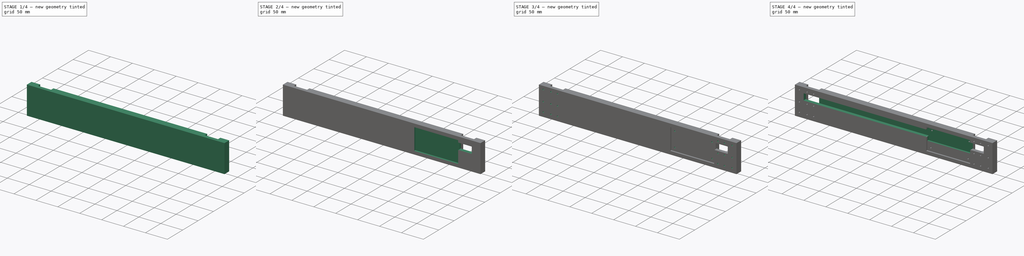
[diagram: build sequence overview — one tinted view per stage of 4, left to right]
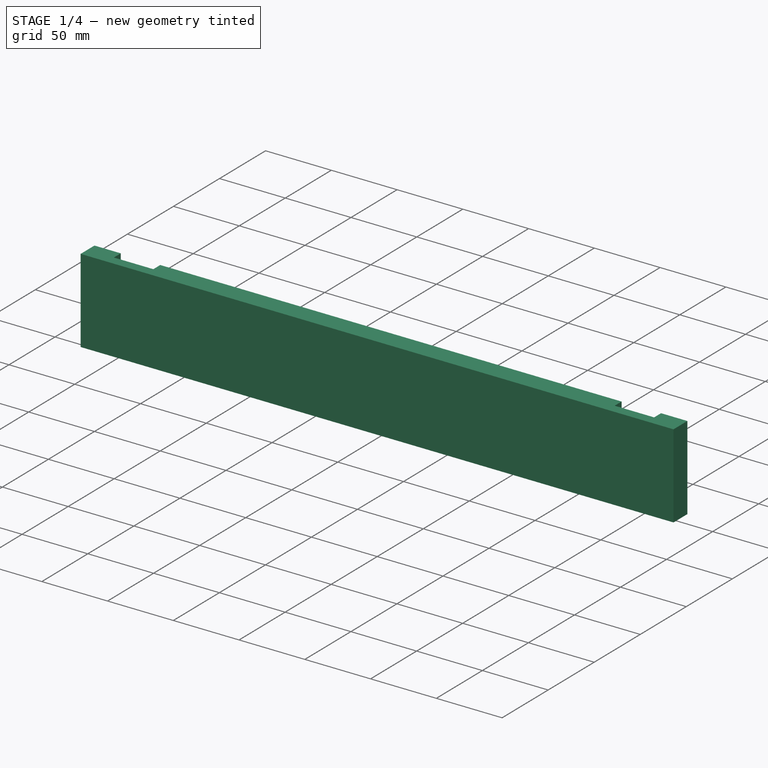
[diagram: stage 1 of 4 — iso view after this stage's code; geometry added in this stage tinted green]
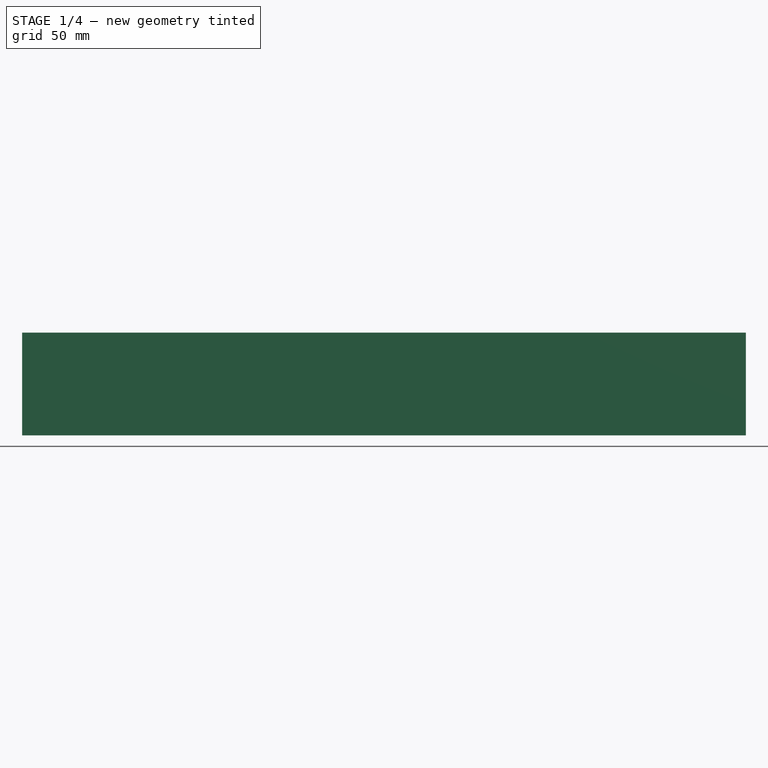
[diagram: stage 1 of 4 — front view after this stage's code; geometry added in this stage tinted green]
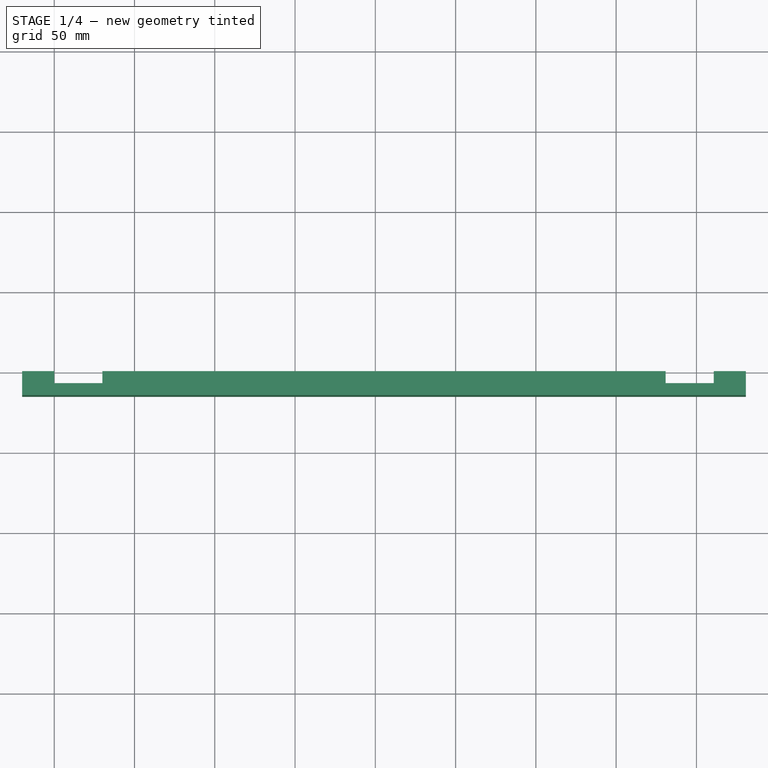
[diagram: stage 1 of 4 — top view after this stage's code; geometry added in this stage tinted green]
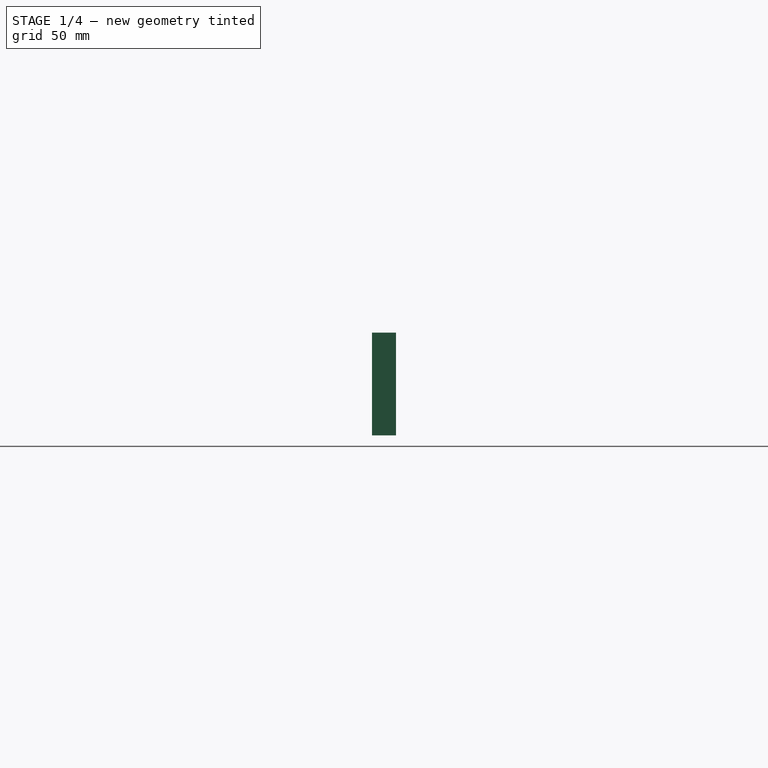
[diagram: stage 1 of 4 — right view after this stage's code; geometry added in this stage tinted green]
FCSTD DOCUMENT  (FreeCAD 0.19R24291 (Git))
Label: InnerFrontWall
License: All rights reserved
LicenseURL: http://en.wikipedia.org/wiki/All_rights_reserved
objects: PartDesign::CoordinateSystem×10, Sketcher::SketchObject×9, PartDesign::Pocket×8, PartDesign::Plane×2, App::FeaturePython×1, PartDesign::Pad×1, PartDesign::Body×1, App::Part×1
note: 40 computed .brp shape members not serialized (recipe doc carries the construction recipe); baked Part::Feature solids carry a one-line shape summary decoded from their .brp

FEATURE [PartDesign::CoordinateSystem] LCS_0
  AttacherType = Attacher::AttachEngine3D
  MapMode = 2
  Support = -> [X_Axis]
FEATURE [PartDesign::CoordinateSystem] LCS_0001
  AttacherType = Attacher::AttachEngine3D
  MapMode = 2
  Support = -> [X_Axis001]
FEATURE [Sketcher::SketchObject] Sketch
  FullyConstrained = true
  MapMode = 5
  Placement = pos=(0,0,0) rot=(1,0,0;1.5708rad)
  Support = -> [XZ_Plane001]
  expr: Constraints[4] = <<Attributes>>.DrawerHeight_DH
  expr: Constraints[7] = <<Attributes>>.SideLengt * 2 + <<Attributes>>.DrawerWidth_DW
  expr: Constraints[11] = <<Attributes>>.SideLengt
  sketch-geometry (4):
    g0: LineSegment StartX=430.8 StartY=0 StartZ=0 EndX=430.8 EndY=64 EndZ=0
    g1: LineSegment StartX=430.8 StartY=64 StartZ=0 EndX=-20 EndY=64 EndZ=0
    g2: LineSegment StartX=-20 StartY=64 StartZ=0 EndX=-20 EndY=0 EndZ=0
    g3: LineSegment StartX=-20 StartY=0 StartZ=0 EndX=430.8 EndY=0 EndZ=0
  constraints (12):
    c: Vertical(g0)
    c: Horizontal(g1)
    c: Horizontal(g3)
    c: Vertical(g2)
    c: Distance(g2) = 64
    c: Coincident(g1,g0)
    c: Coincident(g1,g2)
    c: Distance(g1) = 450.8
    c: Coincident(g3,g0)
    c: Coincident(g2,g3)
    c: PointOnObject(g2,g-1)
    c: DistanceX(g2,g-1) = 20
FEATURE [App::FeaturePython] PropertyBag  label="Attributes"  # WARN: FeaturePython — macro-defined, semantics opaque (R4)
  BackWidth = 395.8
  Back_Space = 100
  BottomDepth = 365.8
  BottomWidth = 365.8
  Bottom_Height_BH = 4
  Bottom_Space_Height = 20
  Box_Tolerance = 0.2
  Boxes_Depth = 5
  Boxes_Height = 40
  Boxes_Width = 5
  CableChannelHight = 15
  CableChannelRadius = 2
  CustomPropertyGroups = shape | attributes
  DrawerDepth_DD = 465.8
  DrawerHeight_DH = 64
  DrawerWidth_DW = 410.8
  InnerWallDepth = 358.3
  LogicBoardScrewHeadDiameter = 6
  LogicBoardScrewHeadHeight = 3
  LogicBoardStandoffHoleDiameter = 3
  LogicBoardStandoffHoleSideSpace = 6
  LogicSpaceCornerRadius = 1
  LogicSpaceWidth = 100
  ScrewPreWhole = 3
  ScrewPreWholeDepth = 20
  SideLengt = 20
  WallThickness_WT = 15
  expr: InnerWallDepth = Boxes_Depth * 70mm + WallThickness_WT * 0.5 + Box_Tolerance * (Boxes_Width - 1)
  expr: DrawerDepth_DD = Boxes_Depth * 70mm + WallThickness_WT + Back_Space + Box_Tolerance * (Boxes_Width - 1)
  expr: BottomWidth = Boxes_Width * 70mm + WallThickness_WT + Box_Tolerance * (Boxes_Width - 1)
  expr: DrawerWidth_DW = Boxes_Width * 70mm + WallThickness_WT * 4 + Box_Tolerance * (Boxes_Width - 1)
  expr: BackWidth = DrawerWidth_DW - WallThickness_WT
  expr: DrawerHeight_DH = Boxes_Height + Bottom_Height_BH + Bottom_Space_Height
  expr: BottomDepth = Boxes_Depth * 70mm + WallThickness_WT + Box_Tolerance * (Boxes_Width - 1)
FEATURE [PartDesign::Pad] Pad
  Direction = (1,1,1)
  Length = 15
  Length2 = 100
  Placement = pos=(0,0,0) rot=(1,0,0;1.5708rad)
  Profile = -> Sketch
  Type = 0
  expr: Length = <<Attributes>>.WallThickness_WT
FEATURE [PartDesign::Plane] DatumPlane
  Length = 60
  MapMode = 3
  Placement = pos=(0,0,0) rot=(1,0,0;1.5708rad)
  ResizeMode = 0
  Support = -> [LCS_0]
  Width = 60
FEATURE [Sketcher::SketchObject] Sketch001
  FullyConstrained = true
  MapMode = 5
  Placement = pos=(0,0,0) rot=(1,0,0;1.5708rad)
  Support = -> [DatumPlane]
  expr: Constraints[12] = <<Attributes>>.WallThickness_WT * 2
  expr: Constraints[13] = <<Attributes>>.DrawerWidth_DW
  expr: Constraints[19] = <<Attributes>>.DrawerWidth_DW - <<Attributes>>.WallThickness_WT * 4
  expr: Constraints[20] = <<Attributes>>.DrawerHeight_DH
  sketch-geometry (8):
    g0: LineSegment StartX=0 StartY=0 StartZ=0 EndX=30 EndY=0 EndZ=0
    g1: LineSegment StartX=30 StartY=64 StartZ=0 EndX=0 EndY=64 EndZ=0
    g2: LineSegment StartX=0 StartY=64 StartZ=0 EndX=0 EndY=0 EndZ=0
    g3: LineSegment StartX=380.8 StartY=0 StartZ=0 EndX=410.8 EndY=0 EndZ=0
    g4: LineSegment StartX=410.8 StartY=0 StartZ=0 EndX=410.8 EndY=64 EndZ=0
    g5: LineSegment StartX=410.8 StartY=64 StartZ=0 EndX=380.8 EndY=64 EndZ=0
    g6: LineSegment StartX=380.8 StartY=64 StartZ=0 EndX=380.8 EndY=0 EndZ=0
    g7: LineSegment StartX=30 StartY=0 StartZ=0 EndX=30 EndY=64 EndZ=0
  constraints (23):
    c: Coincident(g1,g2)
    c: Coincident(g2,g0)
    c: Horizontal(g0)
    c: Horizontal(g1)
    c: Vertical(g2)
    c: Coincident(g0,g-1)
    c: Coincident(g3,g4)
    c: Coincident(g4,g5)
    c: Horizontal(g3)
    c: Horizontal(g5)
    c: Vertical(g4)
    c: PointOnObject(g3,g-1)
    c: Distance(g0) = 30
    c: DistanceX(g0,g3) = 410.8
    c: Coincident(g5,g6)
    c: Vertical(g6)
    c: Coincident(g7,g1)
    c: Vertical(g7)
    c: Equal(g6,g7)
    c: DistanceX(g0,g3) = 350.8
    c: Distance(g2) = 64
    c: Coincident(g7,g0)
    c: Coincident(g6,g3)
FEATURE [PartDesign::Pocket] Pocket
  BaseFeature = -> Pad
  Length = 7.5
  Length2 = 100
  Placement = pos=(0,0,0) rot=(1,0,0;1.5708rad)
  Profile = -> Sketch001
  Reversed = true
  Type = 0
  expr: Length = <<Attributes>>.WallThickness_WT / 2
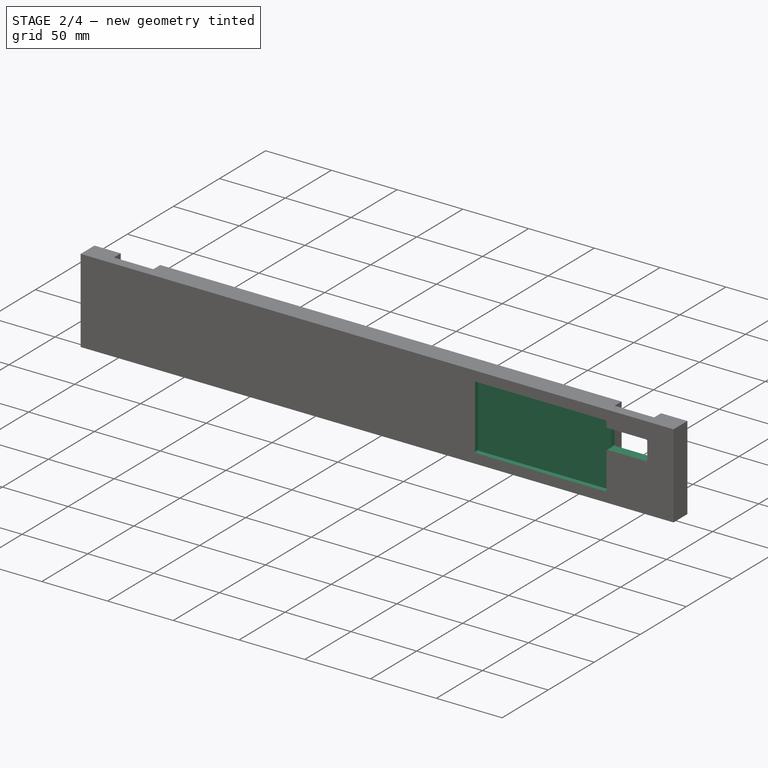
[diagram: stage 2 of 4 — iso view after this stage's code; geometry added in this stage tinted green]
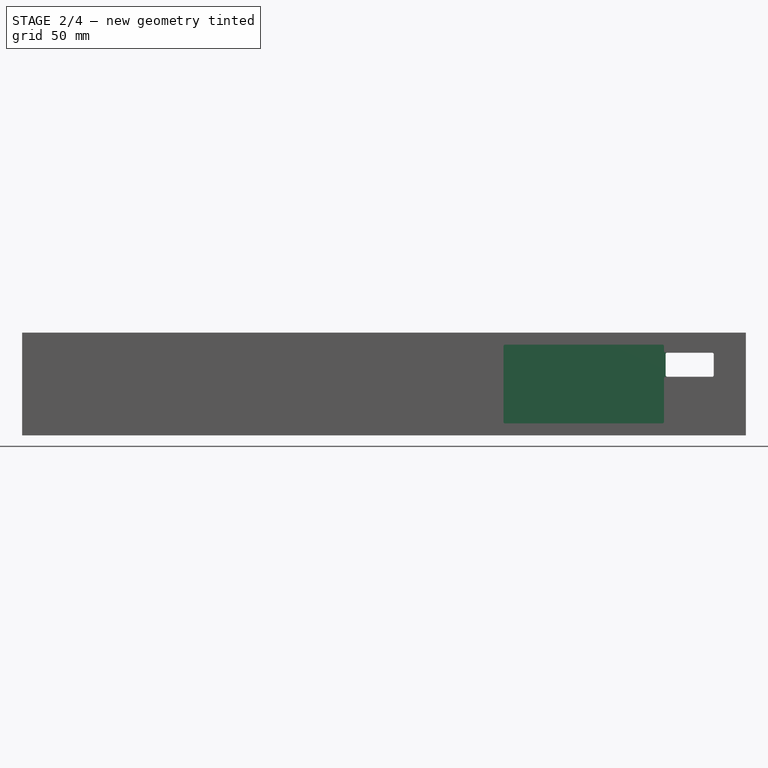
[diagram: stage 2 of 4 — front view after this stage's code; geometry added in this stage tinted green]
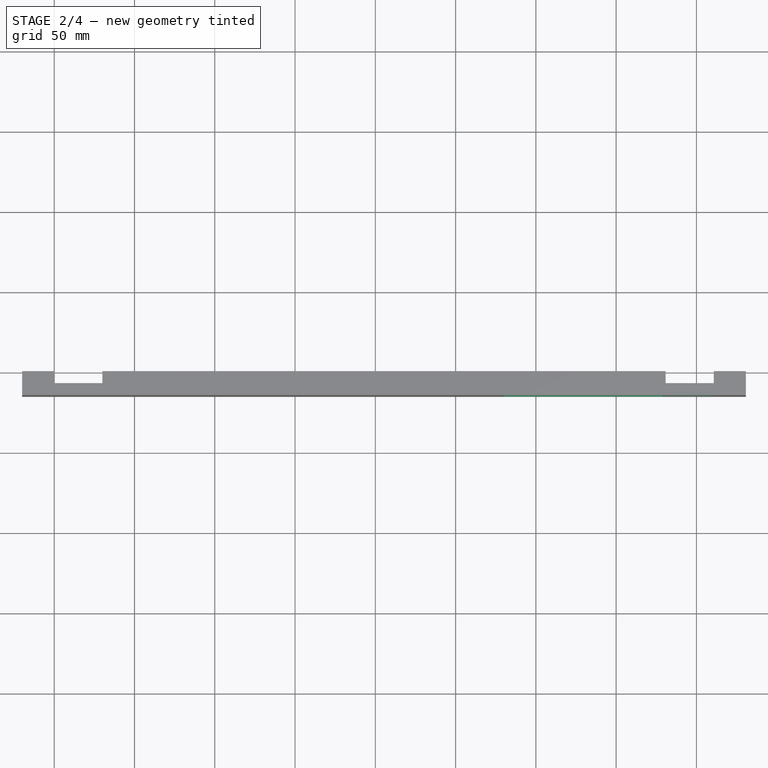
[diagram: stage 2 of 4 — top view after this stage's code; geometry added in this stage tinted green]
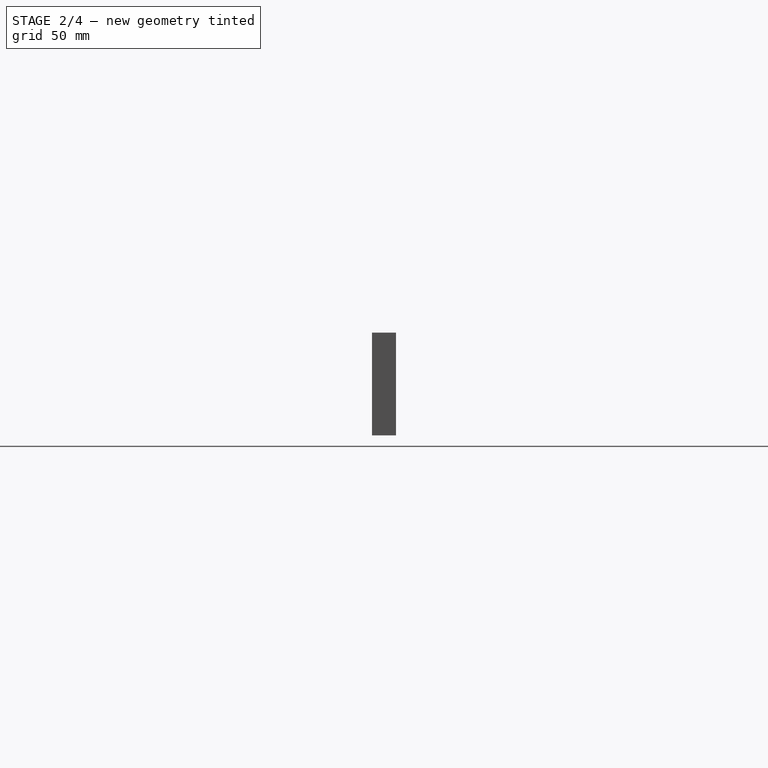
[diagram: stage 2 of 4 — right view after this stage's code; geometry added in this stage tinted green]
FEATURE [PartDesign::Plane] DatumPlane001
  AttachmentOffset = pos=(0,0,15) rot=(0,0,1;0rad)
  Length = 60
  MapMode = 3
  Placement = pos=(0,-15,3.3e-15) rot=(1,0,0;1.5708rad)
  ResizeMode = 0
  Support = -> [LCS_0]
  Width = 60
  expr: .AttachmentOffset.Base.z = <<Attributes>>.WallThickness_WT
FEATURE [Sketcher::SketchObject] Sketch002
  FullyConstrained = true
  MapMode = 5
  Placement = pos=(0,-15,3.3e-15) rot=(1,0,0;1.5708rad)
  Support = -> [DatumPlane001]
  expr: Constraints[48] = <<Attributes>>.LogicSpaceWidth
  expr: Constraints[49] = <<Attributes>>.DrawerHeight_DH - <<Attributes>>.WallThickness_WT / 2 - (<<Attributes>>.DrawerHeight_DH - <<Attributes>>.WallThickness_WT - <<Attributes>>.Bottom_Space_Height - <<Attributes>>.Bottom_Height_BH) / 2
  expr: Constraints[20] = <<Attributes>>.CableChannelHight
  expr: Constraints[10] = <<Attributes>>.LogicSpaceCornerRadius
  expr: Constraints[2] = <<Attributes>>.DrawerWidth_DW
  expr: Constraints[50] = <<Attributes>>.LogicSpaceCornerRadius * 2
  expr: Constraints[51] = <<Attributes>>.DrawerHeight_DH - <<Attributes>>.WallThickness_WT / 2
  expr: Constraints[1] = <<Attributes>>.WallThickness_WT / 2
  expr: Constraints[38] = <<Attributes>>.WallThickness_WT * 2
  sketch-geometry (24):
    g0: LineSegment StartX=279.8 StartY=55.5 StartZ=0 EndX=279.8 EndY=8.5 EndZ=0
    g1: ArcOfCircle CenterX=409.8 CenterY=50.5 CenterZ=0 NormalX=0 NormalY=0 NormalZ=1 AngleXU=0 Radius=1 StartAngle=1.5e-15 EndAngle=1.5708
    g2: GeomPoint X=410.8 Y=51.5 Z=0
    g3: ArcOfCircle CenterX=280.8 CenterY=55.5 CenterZ=0 NormalX=0 NormalY=0 NormalZ=1 AngleXU=0 Radius=1 StartAngle=1.5708 EndAngle=3.14159
    g4: GeomPoint X=279.8 Y=56.5 Z=0
    g5: ArcOfCircle CenterX=280.8 CenterY=8.5 CenterZ=0 NormalX=0 NormalY=0 NormalZ=1 AngleXU=0 Radius=1 StartAngle=3.14159 EndAngle=4.71239
    g6: GeomPoint X=279.8 Y=7.5 Z=0
    g7: ArcOfCircle CenterX=409.8 CenterY=37.5 CenterZ=0 NormalX=0 NormalY=0 NormalZ=1 AngleXU=0 Radius=1 StartAngle=4.71239 EndAngle=6.28317
    g8: GeomPoint X=410.8 Y=36.5 Z=0
    g9: LineSegment StartX=410.8 StartY=37.5 StartZ=0 EndX=410.8 EndY=44 EndZ=0
    g10: LineSegment StartX=410.8 StartY=44 StartZ=0 EndX=410.8 EndY=50.5 EndZ=0
    g11: LineSegment StartX=409.8 StartY=51.5 StartZ=0 EndX=380.8 EndY=51.5 EndZ=0
    g12: LineSegment StartX=378.8 StartY=56.5 StartZ=0 EndX=280.8 EndY=56.5 EndZ=0
    g13: LineSegment StartX=280.8 StartY=7.5 StartZ=0 EndX=378.8 EndY=7.5 EndZ=0
    g14: LineSegment StartX=379.8 StartY=8.5 StartZ=0 EndX=379.8 EndY=35.5 EndZ=0
    g15: LineSegment StartX=380.8 StartY=36.5 StartZ=0 EndX=409.8 EndY=36.5 EndZ=0
    g16: ArcOfCircle CenterX=380.8 CenterY=35.5 CenterZ=0 NormalX=0 NormalY=0 NormalZ=1 AngleXU=0 Radius=1 StartAngle=1.5708 EndAngle=3.14159
    g17: GeomPoint X=379.8 Y=36.5 Z=0
    g18: GeomPoint X=378.8 Y=56.5 Z=0
    g19: ArcOfCircle CenterX=378.8 CenterY=8.5 CenterZ=0 NormalX=0 NormalY=0 NormalZ=1 AngleXU=0 Radius=1 StartAngle=4.71239 EndAngle=6.28319
    g20: GeomPoint X=379.8 Y=7.5 Z=0
    g21: ArcOfCircle CenterX=378.8 CenterY=55.5 CenterZ=0 NormalX=0 NormalY=0 NormalZ=1 AngleXU=0 Radius=1 StartAngle=-1.8e-15 EndAngle=1.5708
    g22: ArcOfCircle CenterX=380.8 CenterY=52.5 CenterZ=0 NormalX=0 NormalY=0 NormalZ=1 AngleXU=0 Radius=1 StartAngle=3.14159 EndAngle=4.71239
    g23: LineSegment StartX=379.8 StartY=55.5 StartZ=0 EndX=379.8 EndY=52.5 EndZ=0
  constraints (62):
    c: Vertical(g0)
    c: DistanceY(g-1,g6) = 7.5
    c: DistanceX(g-1,g2) = 410.8
    c: PointOnObject(g4,g0)
    c: Tangent(g0,g3) = -1.5708
    c: PointOnObject(g6,g0)
    c: Tangent(g0,g5) = -1.5708
    c: Equal(g3,g1)
    c: Equal(g1,g7)
    c: Equal(g7,g5)
    c: Radius(g3) = 1
    c: Horizontal(g7,g8)
    c: Horizontal(g1,g2)
    c: Vertical(g1,g2)
    c: Vertical(g7,g8)
    c: Coincident(g9,g10)
    c: Vertical(g9)
    c: Vertical(g10)
    c: Tangent(g10,g1) = -1.5708
    c: Equal(g9,g10)
    c: DistanceY(g7,g1) = 15
    c: Vertical(g1,g1)
    c: Vertical(g1,g7)
    c: Tangent(g1,g11) = -1.5708
    c: Horizontal(g12)
    c: Tangent(g5,g13) = -1.5708
    c: Vertical(g14)
    c: Coincident(g15,g7)
    c: Horizontal(g15)
    c: PointOnObject(g17,g14)
    c: PointOnObject(g17,g15)
    c: Tangent(g14,g16) = 1.5708
    c: Tangent(g15,g16) = 1.5708
    c: PointOnObject(g20,g13)
    c: PointOnObject(g20,g14)
    c: Tangent(g13,g19) = -1.5708
    c: Tangent(g14,g19) = -1.5708
    c: Equal(g19,g16)
    c: DistanceX(g11,g1) = 30
    c: Tangent(g12,g3) = -1.5708
    c: Horizontal(g13)
    c: Horizontal(g5,g6)
    c: Horizontal(g3,g4)
    c: Coincident(g9,g7)
    c: Vertical(g7,g1)
    c: Vertical(g11,g15)
    c: Equal(g16,g5)
    c: Coincident(g18,g12)
    c: DistanceX(g0,g14) = 100
    c: DistanceY(g-1,g9) = 44
    c: DistanceX(g12,g11) = 2
    c: DistanceY(g-1,g3) = 56.5
    c: Coincident(g21,g12)
    c: Coincident(g22,g11)
    c: Coincident(g23,g21)
    c: Coincident(g23,g22)
    c: Equal(g22,g21)
    c: Equal(g21,g3)
    c: Angle(g22) = 1.5708
    c: Angle(g21) = 1.5708
    c: Vertical(g21,g12)
    c: Horizontal(g22,g22)
FEATURE [PartDesign::Pocket] Pocket001
  BaseFeature = -> Pocket
  Length = 3.75
  Length2 = 100
  Placement = pos=(0,0,0) rot=(1,0,0;1.5708rad)
  Profile = -> Sketch002
  Type = 0
  expr: Length = <<Attributes>>.WallThickness_WT / 4
FEATURE [Sketcher::SketchObject] Sketch003
  FullyConstrained = true
  MapMode = 5
  Placement = pos=(0,-15,3.3e-15) rot=(1,0,0;1.5708rad)
  Support = -> [DatumPlane001]
  expr: Constraints[19] = <<Attributes>>.LogicSpaceCornerRadius
  expr: Constraints[15] = <<Attributes>>.DrawerWidth_DW
  expr: Constraints[20] = <<Attributes>>.CableChannelHight
  expr: Constraints[26] = <<Attributes>>.DrawerHeight_DH - <<Attributes>>.WallThickness_WT / 2 - (<<Attributes>>.DrawerHeight_DH - <<Attributes>>.WallThickness_WT - <<Attributes>>.Bottom_Space_Height - <<Attributes>>.Bottom_Height_BH) / 2
  expr: Constraints[29] = <<Attributes>>.WallThickness_WT * 2
  sketch-geometry (13):
    g0: LineSegment StartX=381.8 StartY=51.5 StartZ=0 EndX=409.8 EndY=51.5 EndZ=0
    g1: LineSegment StartX=410.8 StartY=50.5 StartZ=0 EndX=410.8 EndY=37.5 EndZ=0
    g2: LineSegment StartX=409.8 StartY=36.5 StartZ=0 EndX=381.8 EndY=36.5 EndZ=0
    g3: ArcOfCircle CenterX=381.8 CenterY=50.5 CenterZ=0 NormalX=0 NormalY=0 NormalZ=1 AngleXU=0 Radius=1 StartAngle=1.5708 EndAngle=3.14159
    g4: GeomPoint X=380.8 Y=51.5 Z=0
    g5: ArcOfCircle CenterX=409.8 CenterY=50.5 CenterZ=0 NormalX=0 NormalY=0 NormalZ=1 AngleXU=0 Radius=1 StartAngle=-3.6e-15 EndAngle=1.5708
    g6: GeomPoint X=410.8 Y=51.5 Z=0
    g7: ArcOfCircle CenterX=381.8 CenterY=37.5 CenterZ=0 NormalX=0 NormalY=0 NormalZ=1 AngleXU=0 Radius=1 StartAngle=3.14159 EndAngle=4.71239
    g8: GeomPoint X=380.8 Y=36.5 Z=0
    g9: ArcOfCircle CenterX=409.8 CenterY=37.5 CenterZ=0 NormalX=0 NormalY=0 NormalZ=1 AngleXU=0 Radius=1 StartAngle=4.71239 EndAngle=6.28319
    g10: GeomPoint X=410.8 Y=36.5 Z=0
    g11: LineSegment StartX=380.8 StartY=37.5 StartZ=0 EndX=380.8 EndY=44 EndZ=0
    g12: LineSegment StartX=380.8 StartY=44 StartZ=0 EndX=380.8 EndY=50.5 EndZ=0
  constraints (31):
    c: Horizontal(g0)
    c: Horizontal(g2)
    c: Vertical(g1)
    c: PointOnObject(g4,g0)
    c: Tangent(g0,g3) = 1.5708
    c: PointOnObject(g6,g0)
    c: PointOnObject(g6,g1)
    c: Tangent(g0,g5) = 1.5708
    c: Tangent(g1,g5) = 1.5708
    c: PointOnObject(g8,g2)
    c: Tangent(g2,g7) = 1.5708
    c: PointOnObject(g10,g1)
    c: PointOnObject(g10,g2)
    c: Tangent(g1,g9) = 1.5708
    c: Tangent(g2,g9) = 1.5708
    c: DistanceX(g-1,g6) = 410.8
    c: Equal(g5,g3)
    c: Equal(g3,g7)
    c: Equal(g7,g9)
    c: Radius(g5) = 1
    c: DistanceY(g10,g6) = 15
    c: Tangent(g7,g11) = 1.5708
    c: Coincident(g11,g12)
    c: Vertical(g12)
    c: Vertical(g11)
    c: Equal(g11,g12)
    c: DistanceY(g-1,g11) = 44
    c: Vertical(g3,g4)
    c: Tangent(g12,g3) = 1.5708
    c: DistanceX(g4,g6) = 30
    c: Vertical(g8,g7)
FEATURE [PartDesign::Pocket] Pocket002
  BaseFeature = -> Pocket001
  Length = 5
  Length2 = 100
  Placement = pos=(0,0,0) rot=(1,0,0;1.5708rad)
  Profile = -> Sketch003
  Type = 1
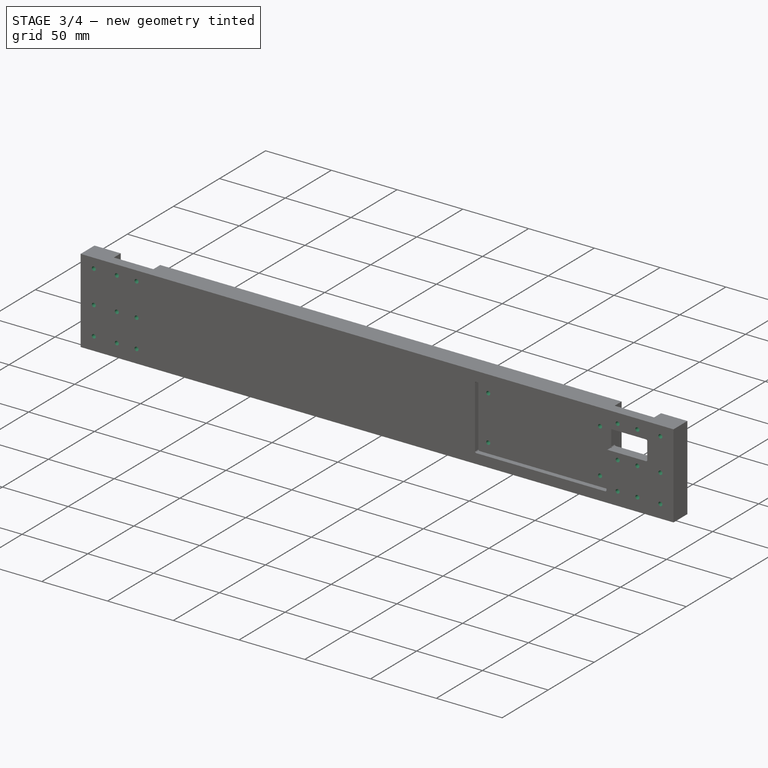
[diagram: stage 3 of 4 — iso view after this stage's code; geometry added in this stage tinted green]
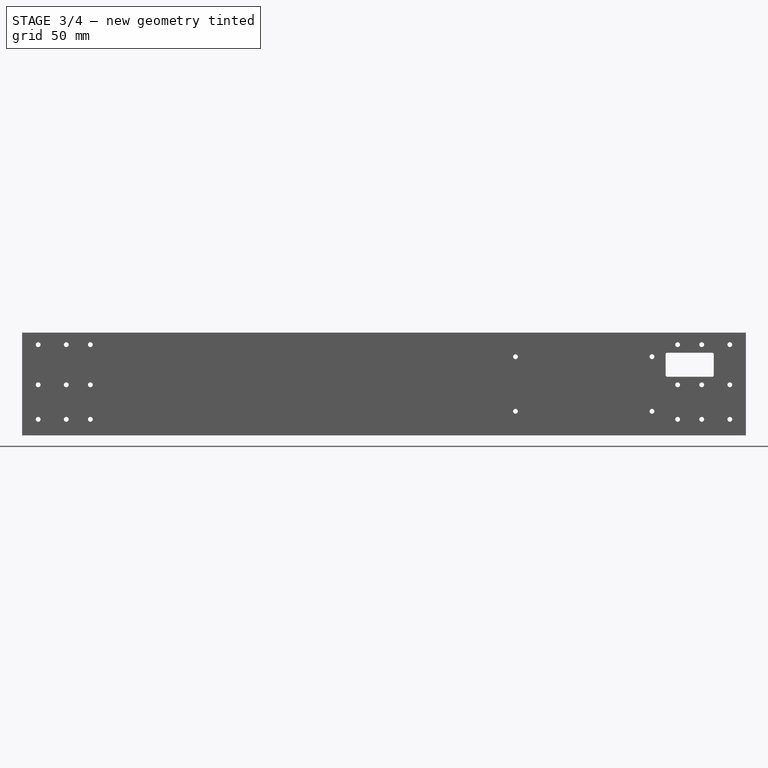
[diagram: stage 3 of 4 — front view after this stage's code; geometry added in this stage tinted green]
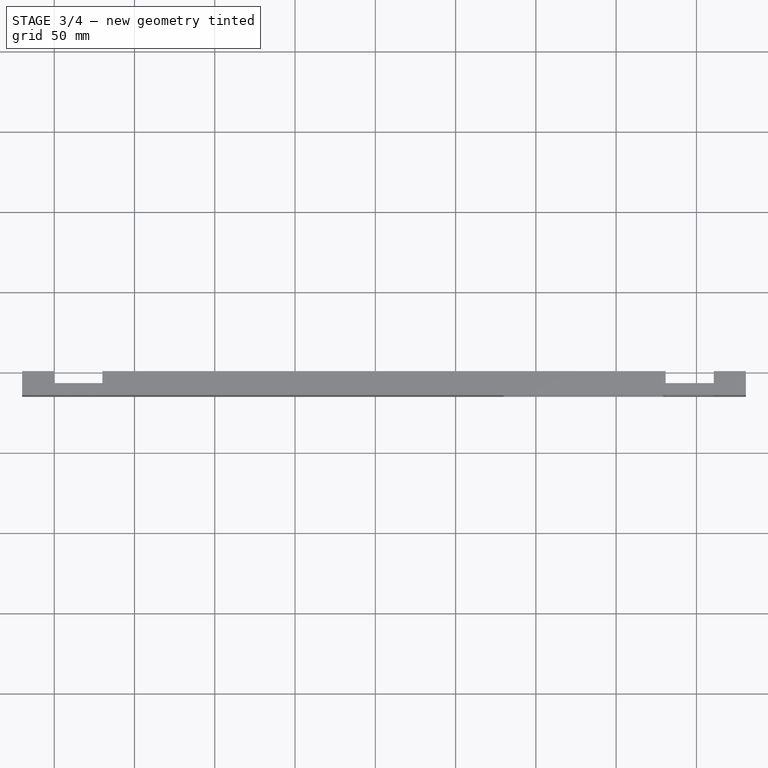
[diagram: stage 3 of 4 — top view after this stage's code; geometry added in this stage tinted green]
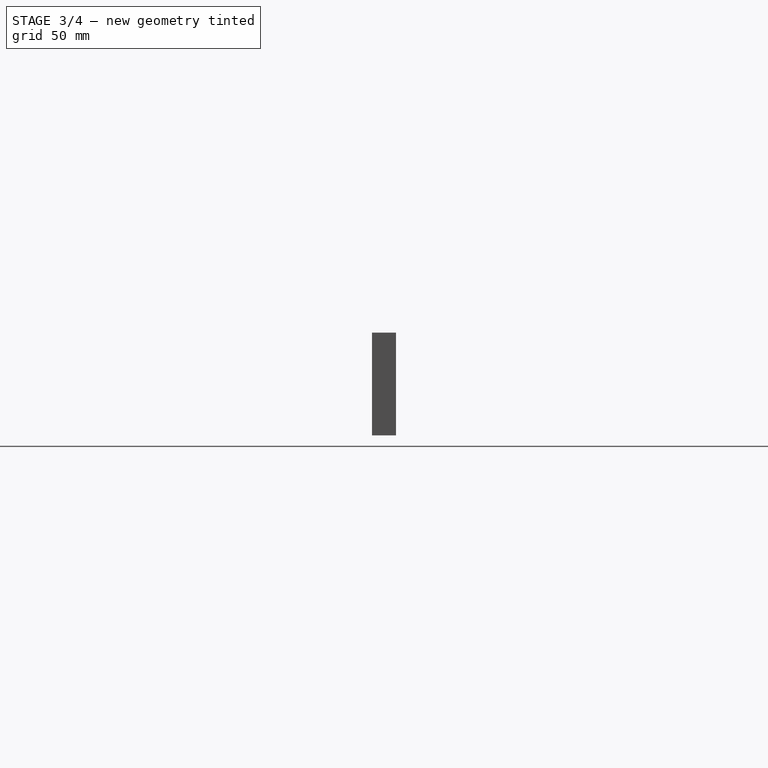
[diagram: stage 3 of 4 — right view after this stage's code; geometry added in this stage tinted green]
FEATURE [Sketcher::SketchObject] Sketch005
  FullyConstrained = true
  MapMode = 5
  Placement = pos=(0,-15,3.3e-15) rot=(1,0,0;1.5708rad)
  Support = -> [DatumPlane001]
  expr: Constraints[5] = <<Attributes>>.WallThickness_WT / 2
  expr: Constraints[6] = <<Attributes>>.DrawerHeight_DH - <<Attributes>>.WallThickness_WT / 2
  expr: Constraints[39] = <<Attributes>>.LogicBoardStandoffHoleSideSpace + <<Attributes>>.LogicBoardStandoffHoleDiameter / 2
  expr: Constraints[7] = <<Attributes>>.DrawerWidth_DW - <<Attributes>>.WallThickness_WT * 2 - <<Attributes>>.LogicSpaceCornerRadius
  expr: Constraints[27] = <<Attributes>>.LogicSpaceCornerRadius
  expr: Constraints[4] = <<Attributes>>.LogicSpaceWidth
  expr: Constraints[32] = <<Attributes>>.LogicBoardStandoffHoleSideSpace + <<Attributes>>.LogicBoardStandoffHoleDiameter / 2
  expr: Constraints[38] = <<Attributes>>.LogicBoardStandoffHoleSideSpace + <<Attributes>>.LogicBoardStandoffHoleDiameter / 2
  expr: Constraints[31] = <<Attributes>>.LogicBoardStandoffHoleDiameter / 2
  expr: Constraints[33] = <<Attributes>>.LogicBoardStandoffHoleSideSpace + <<Attributes>>.LogicBoardStandoffHoleDiameter / 2
  expr: Constraints[34] = <<Attributes>>.LogicBoardStandoffHoleSideSpace + <<Attributes>>.LogicBoardStandoffHoleDiameter / 2
  expr: Constraints[36] = <<Attributes>>.LogicBoardStandoffHoleSideSpace + <<Attributes>>.LogicBoardStandoffHoleDiameter / 2
  expr: Constraints[35] = <<Attributes>>.LogicBoardStandoffHoleSideSpace + <<Attributes>>.LogicBoardStandoffHoleDiameter / 2
  expr: Constraints[37] = <<Attributes>>.LogicBoardStandoffHoleSideSpace + <<Attributes>>.LogicBoardStandoffHoleDiameter / 2
  sketch-geometry (16):
    g0: LineSegment StartX=280.8 StartY=56.5 StartZ=0 EndX=378.8 EndY=56.5 EndZ=0
    g1: LineSegment StartX=379.8 StartY=55.5 StartZ=0 EndX=379.8 EndY=8.5 EndZ=0
    g2: LineSegment StartX=378.8 StartY=7.5 StartZ=0 EndX=280.8 EndY=7.5 EndZ=0
    g3: LineSegment StartX=279.8 StartY=8.5 StartZ=0 EndX=279.8 EndY=55.5 EndZ=0
    g4: ArcOfCircle CenterX=280.8 CenterY=55.5 CenterZ=0 NormalX=0 NormalY=0 NormalZ=1 AngleXU=0 Radius=1 StartAngle=1.5708 EndAngle=3.14159
    g5: GeomPoint X=279.8 Y=56.5 Z=0
    g6: ArcOfCircle CenterX=280.8 CenterY=8.5 CenterZ=0 NormalX=0 NormalY=0 NormalZ=1 AngleXU=0 Radius=1 StartAngle=3.14159 EndAngle=4.71239
    g7: GeomPoint X=279.8 Y=7.5 Z=0
    g8: ArcOfCircle CenterX=378.8 CenterY=8.5 CenterZ=0 NormalX=0 NormalY=0 NormalZ=1 AngleXU=0 Radius=1 StartAngle=4.71239 EndAngle=6.28319
    g9: GeomPoint X=379.8 Y=7.5 Z=0
    g10: ArcOfCircle CenterX=378.8 CenterY=55.5 CenterZ=0 NormalX=0 NormalY=0 NormalZ=1 AngleXU=0 Radius=1 StartAngle=1.2e-15 EndAngle=1.5708
    g11: GeomPoint X=379.8 Y=56.5 Z=0
    g12: Circle CenterX=287.3 CenterY=49 CenterZ=0 NormalX=0 NormalY=0 NormalZ=1 AngleXU=0 Radius=1.5
    g13: Circle CenterX=287.3 CenterY=15 CenterZ=0 NormalX=0 NormalY=0 NormalZ=1 AngleXU=0 Radius=1.5
    g14: Circle CenterX=372.3 CenterY=49 CenterZ=0 NormalX=0 NormalY=0 NormalZ=1 AngleXU=0 Radius=1.5
    g15: Circle CenterX=372.3 CenterY=15 CenterZ=0 NormalX=0 NormalY=0 NormalZ=1 AngleXU=0 Radius=1.5
  constraints (40):
    c: Horizontal(g0)
    c: Horizontal(g2)
    c: Vertical(g1)
    c: Vertical(g3)
    c: DistanceX(g5,g11) = 100
    c: DistanceY(g-1,g7) = 7.5
    c: DistanceY(g-1,g5) = 56.5
    c: DistanceX(g-1,g11) = 379.8
    c: PointOnObject(g5,g0)
    c: PointOnObject(g5,g3)
    c: Tangent(g0,g4) = 1.5708
    c: Tangent(g3,g4) = 1.5708
    c: PointOnObject(g7,g2)
    c: PointOnObject(g7,g3)
    c: Tangent(g2,g6) = 1.5708
    c: Tangent(g3,g6) = 1.5708
    c: PointOnObject(g9,g1)
    c: PointOnObject(g9,g2)
    c: Tangent(g1,g8) = 1.5708
    c: Tangent(g2,g8) = 1.5708
    c: PointOnObject(g11,g0)
    c: PointOnObject(g11,g1)
    c: Tangent(g0,g10) = 1.5708
    c: Tangent(g1,g10) = 1.5708
    c: Equal(g4,g6)
    c: Equal(g6,g8)
    c: Equal(g8,g10)
    c: Radius(g4) = 1
    c: Equal(g12,g14)
    c: Equal(g14,g15)
    c: Equal(g15,g13)
    c: Radius(g12) = 1.5
    c: DistanceX(g14,g1) = 7.5
    c: DistanceY(g14,g0) = 7.5
    c: DistanceX(g3,g12) = 7.5
    c: DistanceY(g12,g0) = 7.5
    c: DistanceX(g3,g13) = 7.5
    c: DistanceY(g2,g13) = 7.5
    c: DistanceY(g2,g15) = 7.5
    c: DistanceX(g15,g1) = 7.5
FEATURE [PartDesign::Pocket] Pocket004
  BaseFeature = -> Pocket002
  Length = 5
  Length2 = 100
  Placement = pos=(0,0,0) rot=(1,0,0;1.5708rad)
  Profile = -> Sketch005
  Type = 1
FEATURE [Sketcher::SketchObject] Sketch006
  FullyConstrained = true
  MapMode = 5
  Placement = pos=(0,0,0) rot=(1,0,0;1.5708rad)
  Support = -> [DatumPlane]
  expr: Constraints[11] = <<Attributes>>.Bottom_Space_Height
  expr: Constraints[10] = <<Attributes>>.Bottom_Height_BH
  expr: Constraints[9] = <<Attributes>>.DrawerWidth_DW
  sketch-geometry (4):
    g0: LineSegment StartX=0 StartY=24 StartZ=0 EndX=410.8 EndY=24 EndZ=0
    g1: LineSegment StartX=410.8 StartY=24 StartZ=0 EndX=410.8 EndY=20 EndZ=0
    g2: LineSegment StartX=410.8 StartY=20 StartZ=0 EndX=0 EndY=20 EndZ=0
    g3: LineSegment StartX=0 StartY=20 StartZ=0 EndX=0 EndY=24 EndZ=0
  constraints (12):
    c: Coincident(g0,g1)
    c: Coincident(g1,g2)
    c: Coincident(g2,g3)
    c: Coincident(g3,g0)
    c: Horizontal(g0)
    c: Horizontal(g2)
    c: Vertical(g1)
    c: Vertical(g3)
    c: PointOnObject(g2,g-2)
    c: DistanceX(g-1,g1) = 410.8
    c: DistanceY(g2,g0) = 4
    c: DistanceY(g-1,g2) = 20
FEATURE [PartDesign::Pocket] Pocket005
  BaseFeature = -> Pocket004
  Length = 7.5
  Length2 = 100
  Placement = pos=(0,0,0) rot=(1,0,0;1.5708rad)
  Profile = -> Sketch006
  Reversed = true
  Type = 0
  expr: Length = <<Attributes>>.WallThickness_WT / 2
FEATURE [Sketcher::SketchObject] Sketch007
  FullyConstrained = true
  MapMode = 5
  Placement = pos=(0,0,0) rot=(1,0,0;1.5708rad)
  Support = -> [DatumPlane]
  expr: Constraints[50] = <<Attributes>>.DrawerWidth_DW - <<Attributes>>.WallThickness_WT * 1.5
  expr: Constraints[48] = <<Attributes>>.WallThickness_WT / 2
  expr: Constraints[22] = <<Attributes>>.ScrewPreWhole / 2
  expr: Constraints[51] = <<Attributes>>.DrawerWidth_DW - <<Attributes>>.WallThickness_WT / 2
  expr: Constraints[21] = <<Attributes>>.DrawerHeight_DH - <<Attributes>>.WallThickness_WT / 2
  expr: Constraints[49] = <<Attributes>>.WallThickness_WT * 1.5
  expr: Constraints[20] = <<Attributes>>.Bottom_Space_Height / 2
  expr: Constraints[19] = <<Attributes>>.DrawerHeight_DH - <<Attributes>>.WallThickness_WT - <<Attributes>>.Bottom_Space_Height - <<Attributes>>.Bottom_Height_BH
  expr: Constraints[64] = <<Attributes>>.SideLengt / 2
  expr: Constraints[76] = <<Attributes>>.DrawerWidth_DW + <<Attributes>>.SideLengt / 2
  sketch-geometry (30):
    g0: Circle CenterX=7.5 CenterY=56.5 CenterZ=0 NormalX=0 NormalY=0 NormalZ=1 AngleXU=0 Radius=1.5
    g1: Circle CenterX=7.5 CenterY=31.5 CenterZ=0 NormalX=0 NormalY=0 NormalZ=1 AngleXU=0 Radius=1.5
    g2: Circle CenterX=7.5 CenterY=10 CenterZ=0 NormalX=0 NormalY=0 NormalZ=1 AngleXU=0 Radius=1.5
    g3: LineSegment StartX=7.5 StartY=10 StartZ=0 EndX=7.5 EndY=31.5 EndZ=0
    g4: LineSegment StartX=7.5 StartY=31.5 StartZ=0 EndX=7.5 EndY=56.5 EndZ=0
    g5: Circle CenterX=22.5 CenterY=56.5 CenterZ=0 NormalX=0 NormalY=0 NormalZ=1 AngleXU=0 Radius=1.5
    g6: Circle CenterX=22.5 CenterY=31.5 CenterZ=0 NormalX=0 NormalY=0 NormalZ=1 AngleXU=0 Radius=1.5
    g7: Circle CenterX=22.5 CenterY=10 CenterZ=0 NormalX=0 NormalY=0 NormalZ=1 AngleXU=0 Radius=1.5
    g8: LineSegment StartX=22.5 StartY=10 StartZ=0 EndX=22.5 EndY=31.5 EndZ=0
    g9: LineSegment StartX=22.5 StartY=31.5 StartZ=0 EndX=22.5 EndY=56.5 EndZ=0
    g10: Circle CenterX=388.3 CenterY=56.5 CenterZ=0 NormalX=0 NormalY=0 NormalZ=1 AngleXU=0 Radius=1.5
    g11: Circle CenterX=388.3 CenterY=31.5 CenterZ=0 NormalX=0 NormalY=0 NormalZ=1 AngleXU=0 Radius=1.5
    g12: Circle CenterX=388.3 CenterY=10 CenterZ=0 NormalX=0 NormalY=0 NormalZ=1 AngleXU=0 Radius=1.5
    g13: LineSegment StartX=388.3 StartY=10 StartZ=0 EndX=388.3 EndY=31.5 EndZ=0
    g14: LineSegment StartX=388.3 StartY=31.5 StartZ=0 EndX=388.3 EndY=56.5 EndZ=0
    g15: Circle CenterX=403.3 CenterY=56.5 CenterZ=0 NormalX=0 NormalY=0 NormalZ=1 AngleXU=0 Radius=1.5
    g16: Circle CenterX=403.3 CenterY=31.5 CenterZ=0 NormalX=0 NormalY=0 NormalZ=1 AngleXU=0 Radius=1.5
    g17: Circle CenterX=403.3 CenterY=10 CenterZ=0 NormalX=0 NormalY=0 NormalZ=1 AngleXU=0 Radius=1.5
    g18: LineSegment StartX=403.3 StartY=10 StartZ=0 EndX=403.3 EndY=31.5 EndZ=0
    g19: LineSegment StartX=403.3 StartY=31.5 StartZ=0 EndX=403.3 EndY=56.5 EndZ=0
    g20: Circle CenterX=-10 CenterY=56.5 CenterZ=0 NormalX=0 NormalY=0 NormalZ=1 AngleXU=0 Radius=1.5
    g21: Circle CenterX=-10 CenterY=31.5 CenterZ=0 NormalX=0 NormalY=0 NormalZ=1 AngleXU=0 Radius=1.5
    g22: Circle CenterX=-10 CenterY=10 CenterZ=0 NormalX=0 NormalY=0 NormalZ=1 AngleXU=0 Radius=1.5
    g23: LineSegment StartX=-10 StartY=10 StartZ=0 EndX=-10 EndY=31.5 EndZ=0
    g24: LineSegment StartX=-10 StartY=31.5 StartZ=0 EndX=-10 EndY=56.5 EndZ=0
    g25: Circle CenterX=420.8 CenterY=56.5 CenterZ=0 NormalX=0 NormalY=0 NormalZ=1 AngleXU=0 Radius=1.5
    g26: Circle CenterX=420.8 CenterY=31.5 CenterZ=0 NormalX=0 NormalY=0 NormalZ=1 AngleXU=0 Radius=1.5
    g27: Circle CenterX=420.8 CenterY=10 CenterZ=0 NormalX=0 NormalY=0 NormalZ=1 AngleXU=0 Radius=1.5
    g28: LineSegment StartX=420.8 StartY=10 StartZ=0 EndX=420.8 EndY=31.5 EndZ=0
    g29: LineSegment StartX=420.8 StartY=31.5 StartZ=0 EndX=420.8 EndY=56.5 EndZ=0
  constraints (78):
    c: Coincident(g3,g2)
    c: Coincident(g3,g4)
    c: Vertical(g4)
    c: Vertical(g3)
    c: Coincident(g0,g4)
    c: Coincident(g1,g3)
    c: Equal(g0,g1)
    c: Equal(g1,g2)
    c: Coincident(g8,g7)
    c: Coincident(g8,g9)
    c: Vertical(g9)
    c: Vertical(g8)
    c: Coincident(g5,g9)
    c: Coincident(g6,g8)
    c: Equal(g5,g6)
    c: Equal(g6,g7)
    c: Equal(g9,g4)
    c: Equal(g3,g8)
    c: Horizontal(g2,g7)
    c: Distance(g4) = 25
    c: DistanceY(g-1,g2) = 10
    c: DistanceY(g-1,g0) = 56.5
    c: Radius(g0) = 1.5
    c: Equal(g0,g5)
    c: Coincident(g13,g12)
    c: Coincident(g13,g14)
    c: Vertical(g14)
    c: Vertical(g13)
    c: Coincident(g10,g14)
    c: Coincident(g11,g13)
    c: Equal(g10,g11)
    c: Equal(g11,g12)
    c: Coincident(g18,g17)
    c: Coincident(g18,g19)
    c: Vertical(g19)
    c: Vertical(g18)
    c: Coincident(g15,g19)
    c: Coincident(g16,g18)
    c: Equal(g15,g16)
    c: Equal(g16,g17)
    c: Equal(g10,g15)
    c: Equal(g15,g5)
    c: Equal(g9,g14)
    c: Equal(g14,g19)
    c: Equal(g8,g13)
    c: Equal(g13,g18)
    c: Horizontal(g7,g12)
    c: Horizontal(g12,g17)
    c: DistanceX(g-1,g2) = 7.5
    c: DistanceX(g-1,g7) = 22.5
    c: DistanceX(g-1,g12) = 388.3
    c: DistanceX(g-1,g17) = 403.3
    c: Coincident(g23,g22)
    c: Coincident(g23,g24)
    c: Vertical(g24)
    c: Vertical(g23)
    c: Coincident(g20,g24)
    c: Coincident(g21,g23)
    c: Equal(g20,g21)
    c: Equal(g21,g22)
    c: Horizontal(g20,g0)
    c: Equal(g22,g0)
    c: Equal(g23,g3)
    c: Equal(g24,g4)
    c: DistanceX(g22,g-1) = 10
    c: Coincident(g28,g27)
    c: Coincident(g28,g29)
    c: Vertical(g29)
    c: Vertical(g28)
    c: Coincident(g25,g29)
    c: Coincident(g26,g28)
    c: Equal(g25,g26)
    c: Equal(g26,g27)
    c: Horizontal(g27,g17)
    c: Equal(g18,g28)
    c: Equal(g19,g29)
    c: DistanceX(g-1,g27) = 420.8
    c: Equal(g27,g17)
FEATURE [PartDesign::Pocket] Pocket006
  BaseFeature = -> Pocket005
  Length = 5
  Length2 = 100
  Placement = pos=(0,0,0) rot=(1,0,0;1.5708rad)
  Profile = -> Sketch007
  Reversed = true
  Type = 1
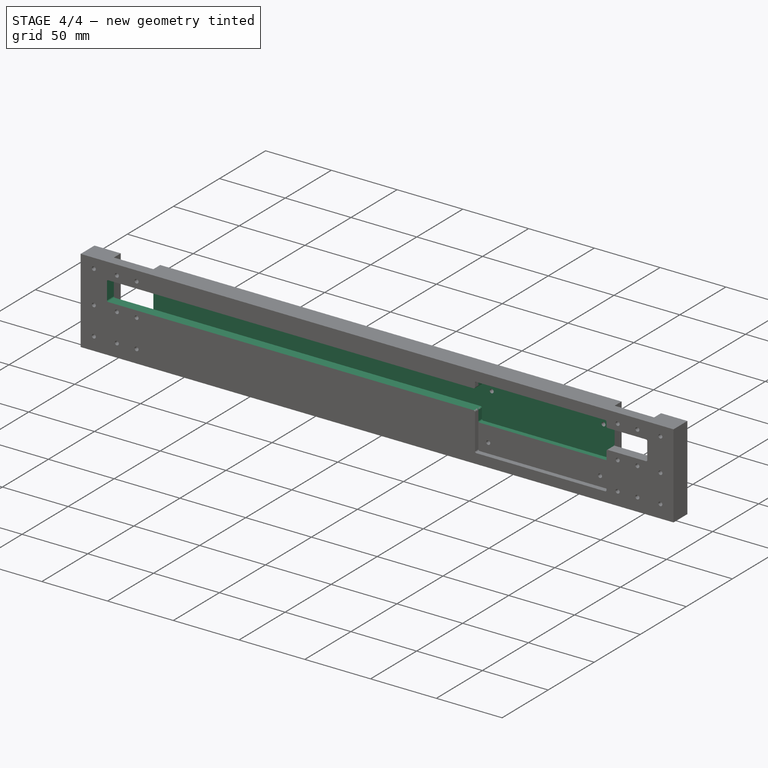
[diagram: stage 4 of 4 — iso view after this stage's code; geometry added in this stage tinted green]
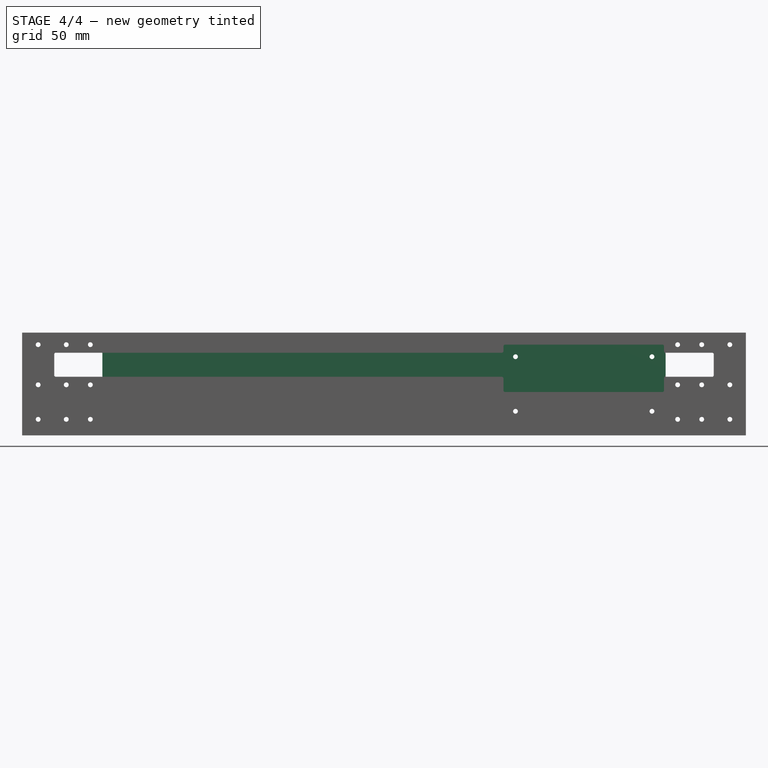
[diagram: stage 4 of 4 — front view after this stage's code; geometry added in this stage tinted green]
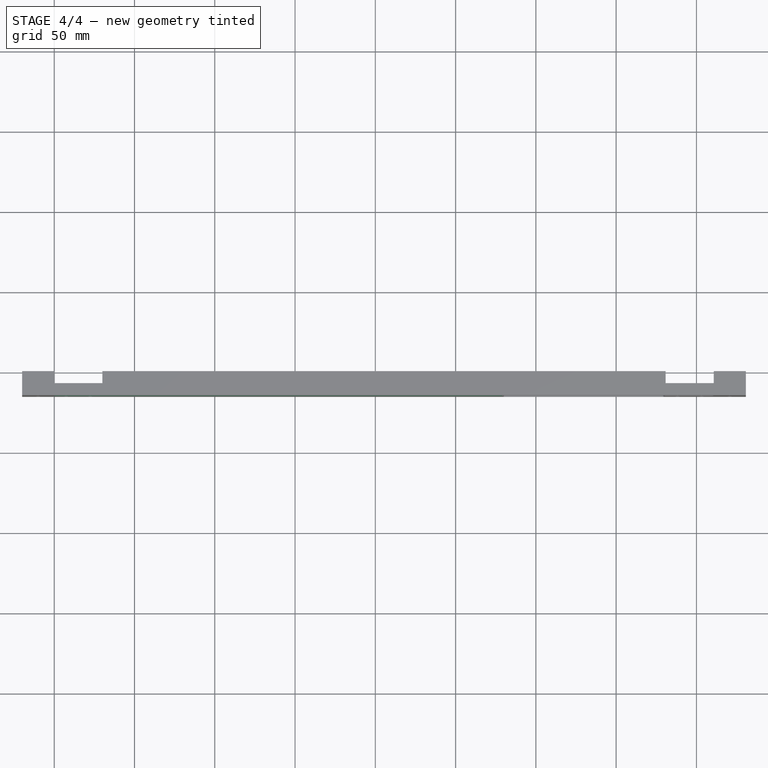
[diagram: stage 4 of 4 — top view after this stage's code; geometry added in this stage tinted green]
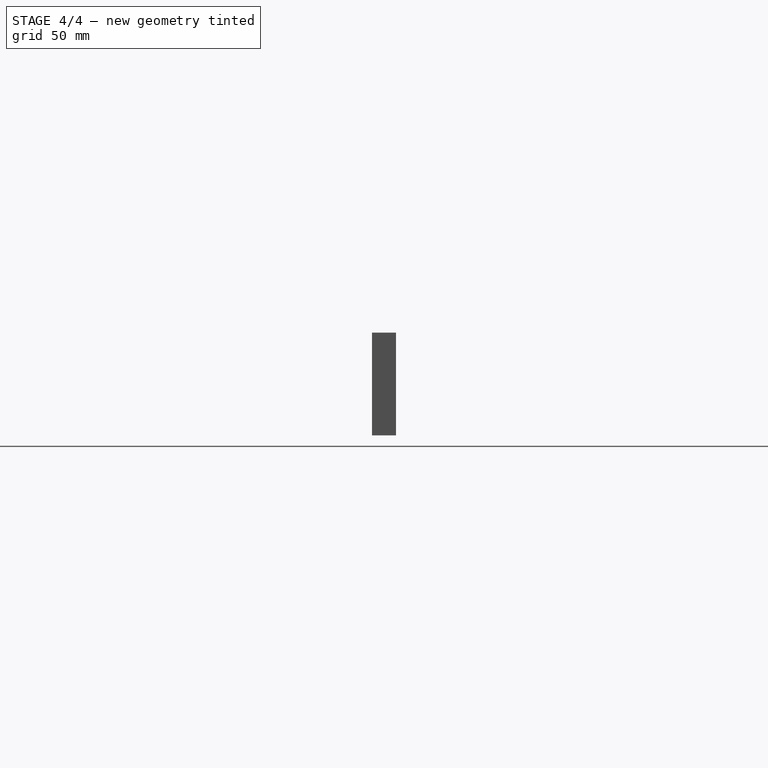
[diagram: stage 4 of 4 — right view after this stage's code; geometry added in this stage tinted green]
FEATURE [Sketcher::SketchObject] Sketch008
  FullyConstrained = true
  MapMode = 5
  Placement = pos=(0,-15,3.3e-15) rot=(1,0,0;1.5708rad)
  Support = -> [DatumPlane001]
  expr: Constraints[4] = <<Attributes>>.LogicSpaceCornerRadius * 2
  expr: Constraints[29] = <<Attributes>>.LogicSpaceCornerRadius
  expr: Constraints[26] = <<Attributes>>.DrawerHeight_DH - <<Attributes>>.WallThickness_WT / 2
  expr: Constraints[31] = <<Attributes>>.LogicSpaceWidth - <<Attributes>>.LogicSpaceCornerRadius
  expr: Constraints[25] = <<Attributes>>.DrawerWidth_DW
  expr: Constraints[23] = <<Attributes>>.DrawerHeight_DH - <<Attributes>>.WallThickness_WT / 2 - (<<Attributes>>.DrawerHeight_DH - <<Attributes>>.WallThickness_WT - <<Attributes>>.Bottom_Space_Height - <<Attributes>>.Bottom_Height_BH) / 2
  expr: Constraints[24] = <<Attributes>>.WallThickness_WT * 2
  expr: Constraints[15] = <<Attributes>>.CableChannelHight
  expr: Constraints[53] = <<Attributes>>.Bottom_Space_Height + <<Attributes>>.Bottom_Height_BH * 2
  sketch-geometry (31):
    g0: LineSegment StartX=378.8 StartY=56.5 StartZ=0 EndX=280.8 EndY=56.5 EndZ=0
    g1: LineSegment StartX=280.8 StartY=27 StartZ=0 EndX=378.8 EndY=27 EndZ=0
    g2: LineSegment StartX=380.8 StartY=36.5 StartZ=0 EndX=409.8 EndY=36.5 EndZ=0
    g3: LineSegment StartX=409.8 StartY=51.5 StartZ=0 EndX=380.8 EndY=51.5 EndZ=0
    g4: ArcOfCircle CenterX=409.8 CenterY=50.5 CenterZ=0 NormalX=0 NormalY=0 NormalZ=1 AngleXU=0 Radius=1 StartAngle=0 EndAngle=1.5708
    g5: GeomPoint X=410.8 Y=51.5 Z=0
    g6: ArcOfCircle CenterX=409.8 CenterY=37.5 CenterZ=0 NormalX=0 NormalY=0 NormalZ=1 AngleXU=0 Radius=1 StartAngle=4.71239 EndAngle=6.28319
    g7: GeomPoint X=410.8 Y=36.5 Z=0
    g8: ArcOfCircle CenterX=280.8 CenterY=55.5 CenterZ=0 NormalX=0 NormalY=0 NormalZ=1 AngleXU=0 Radius=1 StartAngle=1.5708 EndAngle=3.14159
    g9: GeomPoint X=279.8 Y=56.5 Z=0
    g10: ArcOfCircle CenterX=280.8 CenterY=28 CenterZ=0 NormalX=0 NormalY=0 NormalZ=1 AngleXU=0 Radius=1 StartAngle=3.14159 EndAngle=4.71239
    g11: GeomPoint X=279.8 Y=27 Z=0
    g12: LineSegment StartX=410.8 StartY=37.5 StartZ=0 EndX=410.8 EndY=44 EndZ=0
    g13: LineSegment StartX=410.8 StartY=44 StartZ=0 EndX=410.8 EndY=50.5 EndZ=0
    g14: ArcOfCircle CenterX=378.8 CenterY=55.5 CenterZ=0 NormalX=0 NormalY=0 NormalZ=1 AngleXU=0 Radius=1 StartAngle=0 EndAngle=1.5708
    g15: ArcOfCircle CenterX=380.8 CenterY=52.5 CenterZ=0 NormalX=0 NormalY=0 NormalZ=1 AngleXU=0 Radius=1 StartAngle=3.14159 EndAngle=4.71239
    g16: LineSegment StartX=379.8 StartY=55.5 StartZ=0 EndX=379.8 EndY=52.5 EndZ=0
    g17: LineSegment StartX=379.8 StartY=35.5 StartZ=0 EndX=379.8 EndY=28 EndZ=0
    g18: ArcOfCircle CenterX=380.8 CenterY=35.5 CenterZ=0 NormalX=0 NormalY=0 NormalZ=1 AngleXU=0 Radius=1 StartAngle=1.5708 EndAngle=3.14159
    g19: GeomPoint X=379.8 Y=36.5 Z=0
    g20: ArcOfCircle CenterX=378.8 CenterY=28 CenterZ=0 NormalX=0 NormalY=0 NormalZ=1 AngleXU=0 Radius=1 StartAngle=4.71239 EndAngle=6.28319
    g21: GeomPoint X=379.8 Y=27 Z=0
    g22: LineSegment StartX=279.8 StartY=55.5 StartZ=0 EndX=279.8 EndY=52.5 EndZ=0
    g23: LineSegment StartX=278.8 StartY=51.5 StartZ=0 EndX=1 EndY=51.5 EndZ=0
    g24: LineSegment StartX=0 StartY=50.5 StartZ=0 EndX=0 EndY=37.5 EndZ=0
    g25: LineSegment StartX=1 StartY=36.5 StartZ=0 EndX=278.8 EndY=36.5 EndZ=0
    g26: LineSegment StartX=279.8 StartY=35.5 StartZ=0 EndX=279.8 EndY=28 EndZ=0
    g27: ArcOfCircle CenterX=278.8 CenterY=52.5 CenterZ=0 NormalX=0 NormalY=0 NormalZ=1 AngleXU=0 Radius=1 StartAngle=4.71239 EndAngle=6.28319
    g28: ArcOfCircle CenterX=1 CenterY=50.5 CenterZ=0 NormalX=0 NormalY=0 NormalZ=1 AngleXU=0 Radius=1 StartAngle=1.5708 EndAngle=3.14159
    g29: ArcOfCircle CenterX=1 CenterY=37.5 CenterZ=0 NormalX=0 NormalY=0 NormalZ=1 AngleXU=0 Radius=1 StartAngle=3.14159 EndAngle=4.71239
    g30: ArcOfCircle CenterX=278.8 CenterY=35.5 CenterZ=0 NormalX=0 NormalY=0 NormalZ=1 AngleXU=0 Radius=1 StartAngle=-9e-16 EndAngle=1.5708
  constraints (81):
    c: Horizontal(g0)
    c: Horizontal(g1)
    c: Horizontal(g2)
    c: Horizontal(g3)
    c: DistanceX(g0,g3) = 2
    c: PointOnObject(g5,g3)
    c: Tangent(g3,g4) = -1.5708
    c: PointOnObject(g7,g2)
    c: Tangent(g2,g6) = -1.5708
    c: PointOnObject(g9,g0)
    c: Tangent(g0,g8) = -1.5708
    c: PointOnObject(g11,g1)
    c: Tangent(g1,g10) = -1.5708
    c: Equal(g10,g8)
    c: Equal(g6,g4)
    c: DistanceY(g2,g3) = 15
    c: Tangent(g6,g12) = -1.5708
    c: Coincident(g12,g13)
    c: Coincident(g13,g4)
    c: Vertical(g13)
    c: Equal(g12,g13)
    c: Vertical(g12)
    c: Horizontal(g4,g4)
    c: DistanceY(g-1,g12) = 44
    c: DistanceX(g3,g4) = 30
    c: DistanceX(g-1,g12) = 410.8
    c: DistanceY(g-1,g0) = 56.5
    c: Vertical(g6,g7)
    c: Vertical(g5,g4)
    c: Radius(g6) = 1
    c: Equal(g8,g4)
    c: DistanceX(g9,g0) = 99
    c: Coincident(g14,g0)
    c: Horizontal(g14,g14)
    c: Angle(g14) = 1.5708
    c: Equal(g14,g8)
    c: Coincident(g15,g3)
    c: Equal(g15,g14)
    c: Horizontal(g15,g15)
    c: Angle(g15) = 1.5708
    c: Coincident(g16,g14)
    c: Coincident(g16,g15)
    c: Vertical(g17)
    c: PointOnObject(g19,g2)
    c: PointOnObject(g19,g17)
    c: Tangent(g2,g18) = 1.5708
    c: Tangent(g17,g18) = -1.5708
    c: PointOnObject(g21,g1)
    c: PointOnObject(g21,g17)
    c: Tangent(g1,g20) = -1.5708
    c: Tangent(g17,g20) = 1.5708
    c: Equal(g20,g18)
    c: Equal(g18,g15)
    c: DistanceY(g-1,g10) = 28
    c: Vertical(g2,g3)
    c: Tangent(g8,g22) = -1.5708
    c: Horizontal(g23)
    c: Vertical(g24)
    c: Horizontal(g25)
    c: Coincident(g26,g10)
    c: Vertical(g26)
    c: Tangent(g22,g27) = 1.5708
    c: Tangent(g23,g27) = 1.5708
    c: Tangent(g23,g28) = -1.5708
    c: Tangent(g24,g28) = -1.5708
    c: Tangent(g24,g29) = -1.5708
    c: Tangent(g25,g29) = -1.5708
    c: Tangent(g25,g30) = 1.5708
    c: Tangent(g26,g30) = 1.5708
    c: Equal(g30,g29)
    c: Equal(g29,g28)
    c: Equal(g28,g27)
    c: Equal(g27,g8)
    c: Horizontal(g27,g15)
    c: Vertical(g22)
    c: Vertical(g9,g8)
    c: Horizontal(g30,g18)
    c: Vertical(g27,g30)
    c: Vertical(g11,g10)
    c: Horizontal(g10,g10)
    c: PointOnObject(g24,g-2)
FEATURE [PartDesign::Pocket] Pocket007
  BaseFeature = -> Pocket006
  Length = 7.5
  Length2 = 100
  Placement = pos=(0,0,0) rot=(1,0,0;1.5708rad)
  Profile = -> Sketch008
  Type = 0
  expr: Length = <<Attributes>>.WallThickness_WT / 2
FEATURE [Sketcher::SketchObject] Sketch010
  FullyConstrained = true
  MapMode = 5
  Placement = pos=(0,0,0) rot=(1,0,0;1.5708rad)
  Support = -> [DatumPlane]
  expr: Constraints[26] = <<Attributes>>.LogicSpaceCornerRadius
  expr: Constraints[29] = <<Attributes>>.DrawerHeight_DH - <<Attributes>>.WallThickness_WT / 2
  expr: Constraints[32] = <<Attributes>>.LogicBoardStandoffHoleSideSpace + <<Attributes>>.LogicBoardStandoffHoleDiameter / 2
  expr: Constraints[38] = <<Attributes>>.LogicBoardStandoffHoleSideSpace + <<Attributes>>.LogicBoardStandoffHoleDiameter / 2
  expr: Constraints[27] = <<Attributes>>.LogicSpaceWidth
  expr: Constraints[30] = <<Attributes>>.LogicBoardScrewHeadDiameter / 2
  expr: Constraints[28] = <<Attributes>>.WallThickness_WT / 2
  expr: Constraints[31] = <<Attributes>>.DrawerWidth_DW - <<Attributes>>.WallThickness_WT * 2 - <<Attributes>>.LogicSpaceCornerRadius
  expr: Constraints[33] = <<Attributes>>.LogicBoardStandoffHoleSideSpace + <<Attributes>>.LogicBoardStandoffHoleDiameter / 2
  expr: Constraints[34] = <<Attributes>>.LogicBoardStandoffHoleSideSpace + <<Attributes>>.LogicBoardStandoffHoleDiameter / 2
  expr: Constraints[36] = <<Attributes>>.LogicBoardStandoffHoleSideSpace + <<Attributes>>.LogicBoardStandoffHoleDiameter / 2
  expr: Constraints[35] = <<Attributes>>.LogicBoardStandoffHoleSideSpace + <<Attributes>>.LogicBoardStandoffHoleDiameter / 2
  expr: Constraints[37] = <<Attributes>>.LogicBoardStandoffHoleSideSpace + <<Attributes>>.LogicBoardStandoffHoleDiameter / 2
  expr: Constraints[39] = <<Attributes>>.LogicBoardStandoffHoleSideSpace + <<Attributes>>.LogicBoardStandoffHoleDiameter / 2
  sketch-geometry (16):
    g0: Circle CenterX=287.3 CenterY=49 CenterZ=0 NormalX=0 NormalY=0 NormalZ=1 AngleXU=0 Radius=3
    g1: Circle CenterX=372.3 CenterY=49 CenterZ=0 NormalX=0 NormalY=0 NormalZ=1 AngleXU=0 Radius=3
    g2: Circle CenterX=287.3 CenterY=15 CenterZ=0 NormalX=0 NormalY=0 NormalZ=1 AngleXU=0 Radius=3
    g3: Circle CenterX=372.3 CenterY=15 CenterZ=0 NormalX=0 NormalY=0 NormalZ=1 AngleXU=0 Radius=3
    g4: LineSegment StartX=280.8 StartY=56.5 StartZ=0 EndX=378.8 EndY=56.5 EndZ=0
    g5: LineSegment StartX=379.8 StartY=55.5 StartZ=0 EndX=379.8 EndY=8.5 EndZ=0
    g6: LineSegment StartX=378.8 StartY=7.5 StartZ=0 EndX=280.8 EndY=7.5 EndZ=0
    g7: LineSegment StartX=279.8 StartY=8.5 StartZ=0 EndX=279.8 EndY=55.5 EndZ=0
    g8: ArcOfCircle CenterX=280.8 CenterY=55.5 CenterZ=0 NormalX=0 NormalY=0 NormalZ=1 AngleXU=0 Radius=1 StartAngle=1.5708 EndAngle=3.14159
    g9: GeomPoint X=279.8 Y=56.5 Z=0
    g10: ArcOfCircle CenterX=280.8 CenterY=8.5 CenterZ=0 NormalX=0 NormalY=0 NormalZ=1 AngleXU=0 Radius=1 StartAngle=3.14159 EndAngle=4.71239
    g11: GeomPoint X=279.8 Y=7.5 Z=0
    g12: ArcOfCircle CenterX=378.8 CenterY=8.5 CenterZ=0 NormalX=0 NormalY=0 NormalZ=1 AngleXU=0 Radius=1 StartAngle=4.71239 EndAngle=6.28319
    g13: GeomPoint X=379.8 Y=7.5 Z=0
    g14: ArcOfCircle CenterX=378.8 CenterY=55.5 CenterZ=0 NormalX=0 NormalY=0 NormalZ=1 AngleXU=0 Radius=1 StartAngle=3.9e-15 EndAngle=1.5708
    g15: GeomPoint X=379.8 Y=56.5 Z=0
  constraints (40):
    c: Horizontal(g4)
    c: Horizontal(g6)
    c: Vertical(g5)
    c: Vertical(g7)
    c: Equal(g0,g1)
    c: Equal(g1,g2)
    c: Equal(g2,g3)
    c: PointOnObject(g9,g4)
    c: PointOnObject(g9,g7)
    c: Tangent(g4,g8) = 1.5708
    c: Tangent(g7,g8) = 1.5708
    c: PointOnObject(g11,g6)
    c: PointOnObject(g11,g7)
    c: Tangent(g6,g10) = 1.5708
    c: Tangent(g7,g10) = 1.5708
    c: PointOnObject(g13,g5)
    c: PointOnObject(g13,g6)
    c: Tangent(g5,g12) = 1.5708
    c: Tangent(g6,g12) = 1.5708
    c: PointOnObject(g15,g4)
    c: PointOnObject(g15,g5)
    c: Tangent(g4,g14) = 1.5708
    c: Tangent(g5,g14) = 1.5708
    c: Equal(g8,g10)
    c: Equal(g10,g12)
    c: Equal(g12,g14)
    c: Radius(g8) = 1
    c: DistanceX(g9,g15) = 100
    c: DistanceY(g-1,g11) = 7.5
    c: DistanceY(g-1,g9) = 56.5
    c: Radius(g0) = 3
    c: DistanceX(g-1,g15) = 379.8
    c: DistanceY(g1,g4) = 7.5
    c: DistanceX(g1,g5) = 7.5
    c: DistanceX(g7,g0) = 7.5
    c: DistanceY(g0,g4) = 7.5
    c: DistanceX(g7,g2) = 7.5
    c: DistanceY(g6,g2) = 7.5
    c: DistanceX(g3,g5) = 7.5
    c: DistanceY(g6,g3) = 7.5
FEATURE [PartDesign::Pocket] Pocket009
  BaseFeature = -> Pocket007
  Length = 3
  Length2 = 100
  Placement = pos=(0,0,0) rot=(1,0,0;1.5708rad)
  Profile = -> Sketch010
  Reversed = true
  Type = 0
  expr: Length = <<Attributes>>.LogicBoardScrewHeadHeight
FEATURE [PartDesign::Body] InnerFrontWall001
  Group = -> [LCS_0001,Sketch,Pad,Sketch001,Pocket,Sketch002,Pocket001,Sketch003,Pocket002,Sketch005,Pocket004,DatumPlane,DatumPlane001,Sketch006,Pocket005,Sketch007,Pocket006,Sketch008,Pocket007,Sketch010,Pocket009]
  Origin = -> Origin001
  Tip = -> Pocket009
FEATURE [PartDesign::CoordinateSystem] InnerFrontWall_InnerRightWall_  label="InnerFrontWall-InnerRightWall "
  AttacherType = Attacher::AttachEngine3D
  AttachmentOffset = pos=(380.8,-7.5,0) rot=(0,0,1;0rad)
  MapMode = 2
  Placement = pos=(380.8,-7.5,0) rot=(0,0,1;0rad)
  Support = -> [LCS_0]
  expr: .AttachmentOffset.Base.x = <<Attributes>>.DrawerWidth_DW - <<Attributes>>.WallThickness_WT * 2
  expr: .AttachmentOffset.Base.y = <<Attributes>>.WallThickness_WT / -2
FEATURE [PartDesign::CoordinateSystem] InnerFrontWall_OuterRightWall  label="InnerFrontWall-OuterRightWall"
  AttacherType = Attacher::AttachEngine3D
  AttachmentOffset = pos=(395.8,-7.5,0) rot=(0,0,1;0rad)
  MapMode = 2
  Placement = pos=(395.8,-7.5,0) rot=(0,0,1;0rad)
  Support = -> [LCS_0]
  expr: .AttachmentOffset.Base.x = <<Attributes>>.DrawerWidth_DW - <<Attributes>>.WallThickness_WT
  expr: .AttachmentOffset.Base.y = <<Attributes>>.WallThickness_WT / -2
FEATURE [PartDesign::CoordinateSystem] InnerFrontWall_Bottom  label="InnerFrontWall-Bottom"
  AttacherType = Attacher::AttachEngine3D
  AttachmentOffset = pos=(22.5,-7.5,20) rot=(0,0,1;0rad)
  MapMode = 2
  Placement = pos=(22.5,-7.5,20) rot=(0,0,1;0rad)
  Support = -> [LCS_0]
  expr: .AttachmentOffset.Base.x = <<Attributes>>.WallThickness_WT * 1.5
  expr: .AttachmentOffset.Base.y = <<Attributes>>.WallThickness_WT / -2
  expr: .AttachmentOffset.Base.z = <<Attributes>>.Bottom_Space_Height
FEATURE [PartDesign::CoordinateSystem] S1
  AttacherType = Attacher::AttachEngine3D
  MapMode = 11
  Placement = pos=(287.3,-3,49) rot=(0.57735,-0.57735,-0.57735;4.18879rad)
  Support = -> [Pocket009]
FEATURE [PartDesign::CoordinateSystem] S2
  AttacherType = Attacher::AttachEngine3D
  MapMode = 11
  Placement = pos=(287.3,-3,15) rot=(0.57735,-0.57735,-0.57735;4.18879rad)
  Support = -> [Pocket009]
FEATURE [PartDesign::CoordinateSystem] S3
  AttacherType = Attacher::AttachEngine3D
  MapMode = 11
  Placement = pos=(372.3,-3,15) rot=(0.57735,-0.57735,-0.57735;4.18879rad)
  Support = -> [Pocket009]
FEATURE [PartDesign::CoordinateSystem] S4
  AttacherType = Attacher::AttachEngine3D
  MapMode = 11
  Placement = pos=(372.3,-3,49) rot=(0.57735,-0.57735,-0.57735;4.18879rad)
  Support = -> [Pocket009]
FEATURE [PartDesign::CoordinateSystem] InnerFrontWall_OuterFrontWall  label="InnerFrontWall-OuterFrontWall"
  AttacherType = Attacher::AttachEngine3D
  MapMode = 1
  Placement = pos=(-20,-15,8.3e-15) rot=(0,0,1;0rad)
  Support = -> [Pocket009]
FEATURE [App::Part] InnerFrontWall
  Group = -> [LCS_0,InnerFrontWall001,PropertyBag,InnerFrontWall_InnerRightWall_,InnerFrontWall_OuterRightWall,InnerFrontWall_Bottom,S1,S2,S3,S4,InnerFrontWall_OuterFrontWall]
  Origin = -> Origin
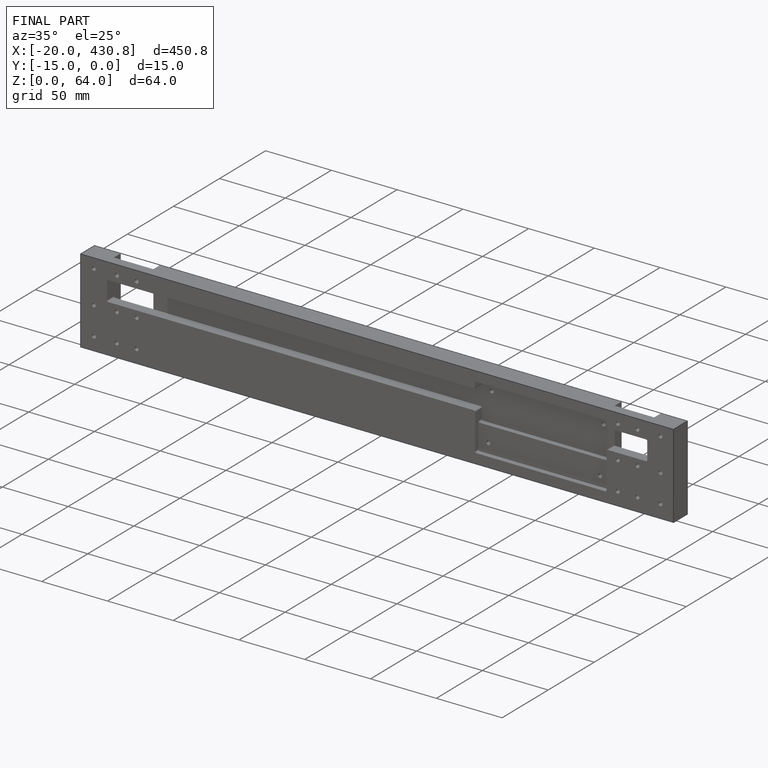
[diagram: finished part — iso view with bounding-box wireframe]
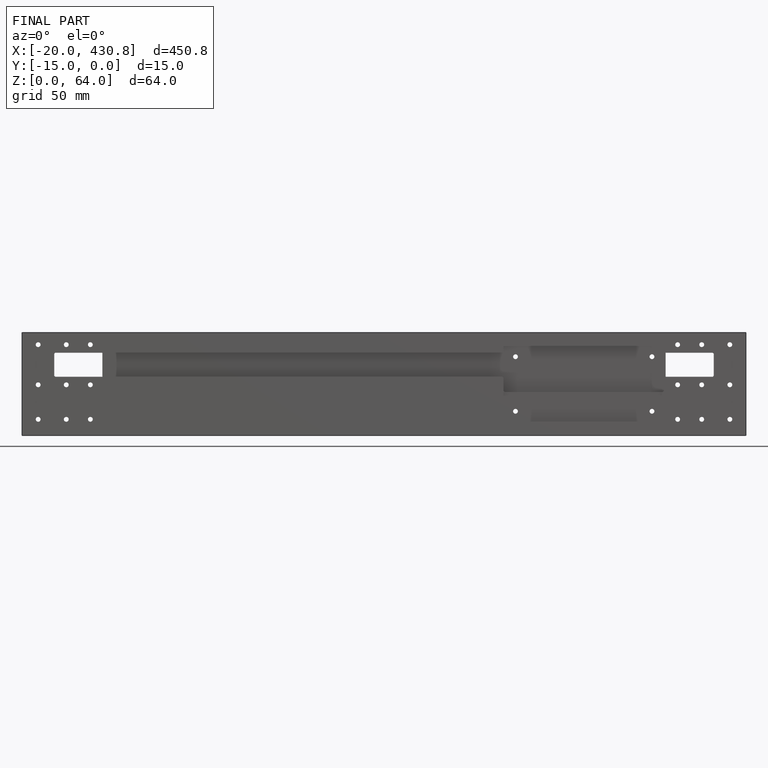
[diagram: finished part — front view with bounding-box wireframe]
